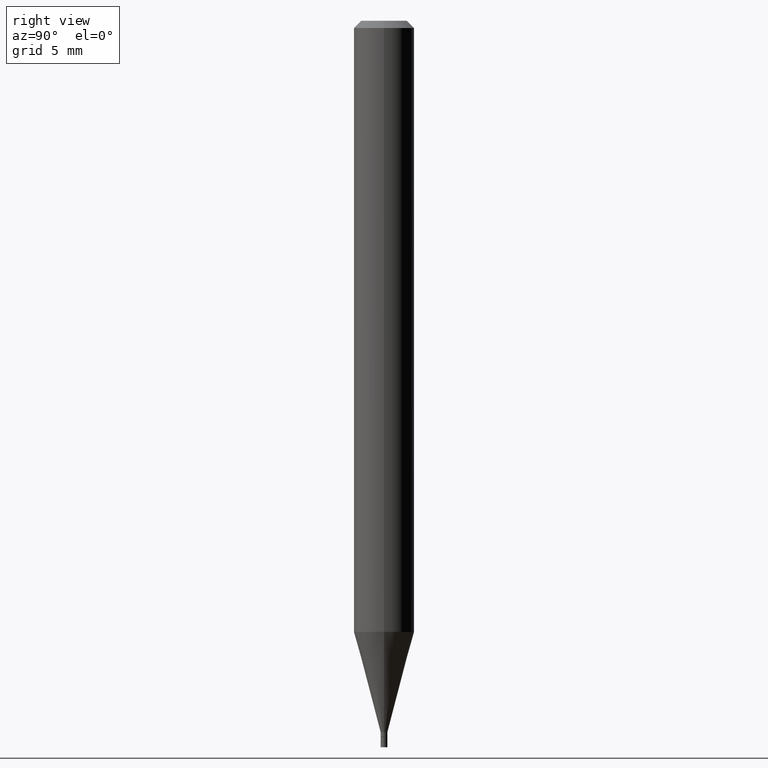
[diagram: clean part render]
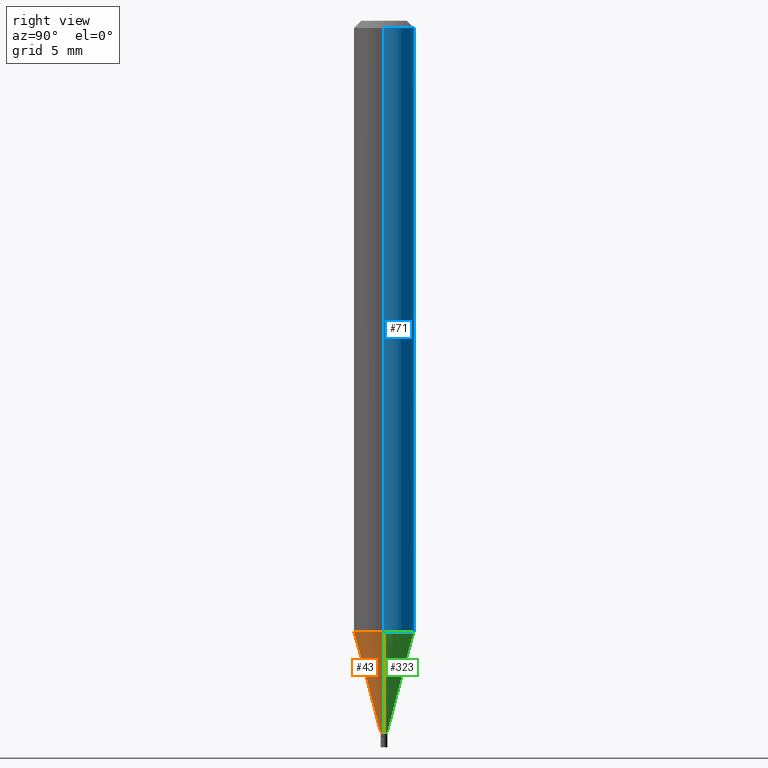
[diagram: same view with three faces highlighted in distinct colors, each labeled with its STEP entity id]
A machine part, right view with three faces highlighted in distinct colors.
Their STEP definitions:

[orange] entity #43 — the highlighted conical surface has half-angle 15 deg.
#8 = ORIENTED_EDGE ( 'NONE', *, *, #104, .F. ) ;
#15 = AXIS2_PLACEMENT_3D ( 'NONE', #267, #82, #375 ) ;
#17 = DIRECTION ( 'NONE',  ( 1.000000000000000000, -6.982962677686273021E-15, 0.000000000000000000 ) ) ;
#20 = CARTESIAN_POINT ( 'NONE',  ( -0.06249999999999999306, -3.961710467772130736E-15, -1.261871180179927610 ) ) ;
#21 = VERTEX_POINT ( 'NONE', #387 ) ;
#43 = ADVANCED_FACE ( 'NONE', ( #130 ), #376, .T. ) ;
#56 = ORIENTED_EDGE ( 'NONE', *, *, #185, .F. ) ;
#77 = CARTESIAN_POINT ( 'NONE',  ( -0.006999999999999920348, -5.079248095257373954E-15, -1.469000000000000083 ) ) ;
#82 = DIRECTION ( 'NONE',  ( -2.445468806185136597E-29, 3.491481338843145583E-15, 1.000000000000000000 ) ) ;
#90 = CARTESIAN_POINT ( 'NONE',  ( 0.06249999999999999306, -4.842234844977585811E-15, -1.261871180179927610 ) ) ;
#99 = ORIENTED_EDGE ( 'NONE', *, *, #434, .T. ) ;
#104 = EDGE_CURVE ( 'NONE', #270, #277, #325, .T. ) ;
#110 = CARTESIAN_POINT ( 'NONE',  ( 3.085866608554036727E-29, -4.405799677622194141E-15, -1.261871180179927610 ) ) ;
#113 = CARTESIAN_POINT ( 'NONE',  ( 0.006999999999999920348, -5.177866825504383900E-15, -1.469000000000000083 ) ) ;
#117 = DIRECTION ( 'NONE',  ( 0.2588190451025213501, 1.565188264969621968E-15, 0.9659258262890682012 ) ) ;
#119 = ORIENTED_EDGE ( 'NONE', *, *, #450, .T. ) ;
#130 = FACE_OUTER_BOUND ( 'NONE', #319, .T. ) ;
#156 = AXIS2_PLACEMENT_3D ( 'NONE', #383, #339, #17 ) ;
#171 = VECTOR ( 'NONE', #436, 39.37007874015747433 ) ;
#172 = CIRCLE ( 'NONE', #15, 0.006999999999999920348 ) ;
#185 = EDGE_CURVE ( 'NONE', #277, #424, #229, .T. ) ;
#229 = CIRCLE ( 'NONE', #249, 0.06250000000000000000 ) ;
#249 = AXIS2_PLACEMENT_3D ( 'NONE', #110, #432, #371 ) ;
#254 = VECTOR ( 'NONE', #117, 39.37007874015747433 ) ;
#267 = CARTESIAN_POINT ( 'NONE',  ( 3.592393676285966338E-29, -5.128986086760581011E-15, -1.469000000000000083 ) ) ;
#270 = VERTEX_POINT ( 'NONE', #417 ) ;
#277 = VERTEX_POINT ( 'NONE', #20 ) ;
#319 = EDGE_LOOP ( 'NONE', ( #8, #119, #99, #56 ) ) ;
#325 = LINE ( 'NONE', #77, #171 ) ;
#339 = DIRECTION ( 'NONE',  ( -2.445468806185136597E-29, 3.491481338843145583E-15, 1.000000000000000000 ) ) ;
#371 = DIRECTION ( 'NONE',  ( 1.000000000000000000, -6.982962677686262766E-15, 0.000000000000000000 ) ) ;
#375 = DIRECTION ( 'NONE',  ( 1.000000000000000000, -6.982962677686273021E-15, 0.000000000000000000 ) ) ;
#376 = CONICAL_SURFACE ( 'NONE', #156, 0.006999999999999920348, 0.2617993877991500740 ) ;
#382 = LINE ( 'NONE', #113, #254 ) ;
#383 = CARTESIAN_POINT ( 'NONE',  ( 3.592393676285966338E-29, -5.128986086760581011E-15, -1.469000000000000083 ) ) ;
#387 = CARTESIAN_POINT ( 'NONE',  ( 0.006999999999999920348, -5.177866825504383900E-15, -1.469000000000000083 ) ) ;
#417 = CARTESIAN_POINT ( 'NONE',  ( -0.006999999999999920348, -4.520479281514752345E-15, -1.469000000000000083 ) ) ;
#424 = VERTEX_POINT ( 'NONE', #90 ) ;
#432 = DIRECTION ( 'NONE',  ( -2.445468806185136597E-29, 3.491481338843145583E-15, 1.000000000000000000 ) ) ;
#434 = EDGE_CURVE ( 'NONE', #21, #424, #382, .T. ) ;
#436 = DIRECTION ( 'NONE',  ( -0.2588190451025213501, 5.211531920934551042E-15, 0.9659258262890682012 ) ) ;
#450 = EDGE_CURVE ( 'NONE', #270, #21, #172, .T. ) ;

[blue] entity #71 — the highlighted cylindrical surface (edge-blend (fillet) strip) has radius 1.5875 mm, axis along (-0, 0, 1).
#20 = CARTESIAN_POINT ( 'NONE',  ( -0.06249999999999999306, -3.961710467772130736E-15, -1.261871180179927610 ) ) ;
#23 = ORIENTED_EDGE ( 'NONE', *, *, #67, .T. ) ;
#28 = ORIENTED_EDGE ( 'NONE', *, *, #359, .T. ) ;
#38 = VECTOR ( 'NONE', #98, 39.37007874015748143 ) ;
#55 = EDGE_CURVE ( 'NONE', #392, #197, #177, .T. ) ;
#67 = EDGE_CURVE ( 'NONE', #277, #197, #215, .T. ) ;
#71 = ADVANCED_FACE ( 'NONE', ( #295 ), #333, .T. ) ;
#87 = AXIS2_PLACEMENT_3D ( 'NONE', #405, #366, #181 ) ;
#90 = CARTESIAN_POINT ( 'NONE',  ( 0.06249999999999999306, -4.842234844977585811E-15, -1.261871180179927610 ) ) ;
#98 = DIRECTION ( 'NONE',  ( -2.445468806185136877E-29, 3.491481338843145188E-15, 1.000000000000000000 ) ) ;
#102 = CARTESIAN_POINT ( 'NONE',  ( 3.085866608554036727E-29, -4.405799677622194141E-15, -1.261871180179927610 ) ) ;
#108 = CARTESIAN_POINT ( 'NONE',  ( -0.06250000000000000000, -1.784996739002358191E-15, -0.01499999999999999944 ) ) ;
#111 = DIRECTION ( 'NONE',  ( -2.445468806185136877E-29, 3.491481338843145188E-15, 1.000000000000000000 ) ) ;
#125 = DIRECTION ( 'NONE',  ( -2.445468806185136597E-29, 3.491481338843145583E-15, 1.000000000000000000 ) ) ;
#159 = EDGE_LOOP ( 'NONE', ( #28, #23, #264, #394 ) ) ;
#177 = CIRCLE ( 'NONE', #278, 0.06250000000000000000 ) ;
#181 = DIRECTION ( 'NONE',  ( 1.000000000000000000, -6.982962677686266711E-15, 4.876176775795935793E-29 ) ) ;
#197 = VERTEX_POINT ( 'NONE', #108 ) ;
#215 = LINE ( 'NONE', #374, #370 ) ;
#225 = DIRECTION ( 'NONE',  ( 1.000000000000000000, -6.982962677686266711E-15, 0.000000000000000000 ) ) ;
#237 = LINE ( 'NONE', #421, #38 ) ;
#250 = DIRECTION ( 'NONE',  ( 1.000000000000000000, -6.982962677686262766E-15, 0.000000000000000000 ) ) ;
#264 = ORIENTED_EDGE ( 'NONE', *, *, #55, .F. ) ;
#277 = VERTEX_POINT ( 'NONE', #20 ) ;
#278 = AXIS2_PLACEMENT_3D ( 'NONE', #444, #125, #225 ) ;
#288 = EDGE_CURVE ( 'NONE', #424, #392, #237, .T. ) ;
#295 = FACE_OUTER_BOUND ( 'NONE', #159, .T. ) ;
#309 = AXIS2_PLACEMENT_3D ( 'NONE', #102, #360, #250 ) ;
#333 = CYLINDRICAL_SURFACE ( 'NONE', #87, 0.06250000000000000000 ) ;
#359 = EDGE_CURVE ( 'NONE', #424, #277, #435, .T. ) ;
#360 = DIRECTION ( 'NONE',  ( -2.445468806185136597E-29, 3.491481338843145583E-15, 1.000000000000000000 ) ) ;
#366 = DIRECTION ( 'NONE',  ( -2.445468806185136597E-29, 3.491481338843145583E-15, 1.000000000000000000 ) ) ;
#370 = VECTOR ( 'NONE', #111, 39.37007874015748143 ) ;
#373 = CARTESIAN_POINT ( 'NONE',  ( 0.06250000000000000000, -4.888073874380388472E-16, -0.01499999999999999944 ) ) ;
#374 = CARTESIAN_POINT ( 'NONE',  ( -0.06250000000000000000, 4.440892098500626162E-16, -3.074334431409316114E-30 ) ) ;
#392 = VERTEX_POINT ( 'NONE', #373 ) ;
#394 = ORIENTED_EDGE ( 'NONE', *, *, #288, .F. ) ;
#405 = CARTESIAN_POINT ( 'NONE',  ( 0.000000000000000000, 0.000000000000000000, 0.000000000000000000 ) ) ;
#421 = CARTESIAN_POINT ( 'NONE',  ( 0.06250000000000000000, -4.364351673553916694E-16, 3.047610484872459871E-30 ) ) ;
#424 = VERTEX_POINT ( 'NONE', #90 ) ;
#435 = CIRCLE ( 'NONE', #309, 0.06250000000000000000 ) ;
#444 = CARTESIAN_POINT ( 'NONE',  ( 3.668203209277705088E-31, -5.237222008264718399E-17, -0.01499999999999999944 ) ) ;

[green] entity #323 — the highlighted conical surface has half-angle 15 deg.
#9 = DIRECTION ( 'NONE',  ( -2.445468806185136597E-29, 3.491481338843145583E-15, 1.000000000000000000 ) ) ;
#20 = CARTESIAN_POINT ( 'NONE',  ( -0.06249999999999999306, -3.961710467772130736E-15, -1.261871180179927610 ) ) ;
#21 = VERTEX_POINT ( 'NONE', #387 ) ;
#65 = CARTESIAN_POINT ( 'NONE',  ( 3.592393676285966338E-29, -5.128986086760581011E-15, -1.469000000000000083 ) ) ;
#77 = CARTESIAN_POINT ( 'NONE',  ( -0.006999999999999920348, -5.079248095257373954E-15, -1.469000000000000083 ) ) ;
#90 = CARTESIAN_POINT ( 'NONE',  ( 0.06249999999999999306, -4.842234844977585811E-15, -1.261871180179927610 ) ) ;
#101 = AXIS2_PLACEMENT_3D ( 'NONE', #65, #144, #290 ) ;
#102 = CARTESIAN_POINT ( 'NONE',  ( 3.085866608554036727E-29, -4.405799677622194141E-15, -1.261871180179927610 ) ) ;
#104 = EDGE_CURVE ( 'NONE', #270, #277, #325, .T. ) ;
#113 = CARTESIAN_POINT ( 'NONE',  ( 0.006999999999999920348, -5.177866825504383900E-15, -1.469000000000000083 ) ) ;
#117 = DIRECTION ( 'NONE',  ( 0.2588190451025213501, 1.565188264969621968E-15, 0.9659258262890682012 ) ) ;
#124 = CONICAL_SURFACE ( 'NONE', #399, 0.006999999999999920348, 0.2617993877991500740 ) ;
#144 = DIRECTION ( 'NONE',  ( -2.445468806185136597E-29, 3.491481338843145583E-15, 1.000000000000000000 ) ) ;
#160 = CARTESIAN_POINT ( 'NONE',  ( 3.592393676285966338E-29, -5.128986086760581011E-15, -1.469000000000000083 ) ) ;
#171 = VECTOR ( 'NONE', #436, 39.37007874015747433 ) ;
#250 = DIRECTION ( 'NONE',  ( 1.000000000000000000, -6.982962677686262766E-15, 0.000000000000000000 ) ) ;
#254 = VECTOR ( 'NONE', #117, 39.37007874015747433 ) ;
#262 = EDGE_LOOP ( 'NONE', ( #308, #401, #274, #313 ) ) ;
#270 = VERTEX_POINT ( 'NONE', #417 ) ;
#274 = ORIENTED_EDGE ( 'NONE', *, *, #359, .F. ) ;
#277 = VERTEX_POINT ( 'NONE', #20 ) ;
#290 = DIRECTION ( 'NONE',  ( 1.000000000000000000, -6.982962677686273021E-15, 0.000000000000000000 ) ) ;
#293 = CIRCLE ( 'NONE', #101, 0.006999999999999920348 ) ;
#308 = ORIENTED_EDGE ( 'NONE', *, *, #363, .T. ) ;
#309 = AXIS2_PLACEMENT_3D ( 'NONE', #102, #360, #250 ) ;
#313 = ORIENTED_EDGE ( 'NONE', *, *, #434, .F. ) ;
#323 = ADVANCED_FACE ( 'NONE', ( #379 ), #124, .T. ) ;
#325 = LINE ( 'NONE', #77, #171 ) ;
#359 = EDGE_CURVE ( 'NONE', #424, #277, #435, .T. ) ;
#360 = DIRECTION ( 'NONE',  ( -2.445468806185136597E-29, 3.491481338843145583E-15, 1.000000000000000000 ) ) ;
#363 = EDGE_CURVE ( 'NONE', #21, #270, #293, .T. ) ;
#379 = FACE_OUTER_BOUND ( 'NONE', #262, .T. ) ;
#382 = LINE ( 'NONE', #113, #254 ) ;
#387 = CARTESIAN_POINT ( 'NONE',  ( 0.006999999999999920348, -5.177866825504383900E-15, -1.469000000000000083 ) ) ;
#399 = AXIS2_PLACEMENT_3D ( 'NONE', #160, #9, #440 ) ;
#401 = ORIENTED_EDGE ( 'NONE', *, *, #104, .T. ) ;
#417 = CARTESIAN_POINT ( 'NONE',  ( -0.006999999999999920348, -4.520479281514752345E-15, -1.469000000000000083 ) ) ;
#424 = VERTEX_POINT ( 'NONE', #90 ) ;
#434 = EDGE_CURVE ( 'NONE', #21, #424, #382, .T. ) ;
#435 = CIRCLE ( 'NONE', #309, 0.06250000000000000000 ) ;
#436 = DIRECTION ( 'NONE',  ( -0.2588190451025213501, 5.211531920934551042E-15, 0.9659258262890682012 ) ) ;
#440 = DIRECTION ( 'NONE',  ( 1.000000000000000000, -6.982962677686273021E-15, 0.000000000000000000 ) ) ;